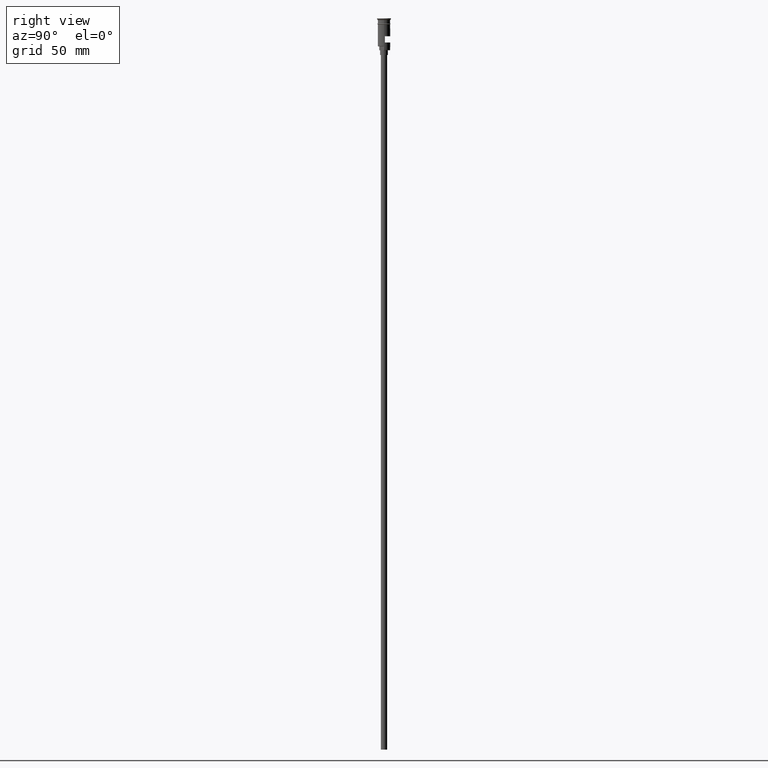
[diagram: clean part render]
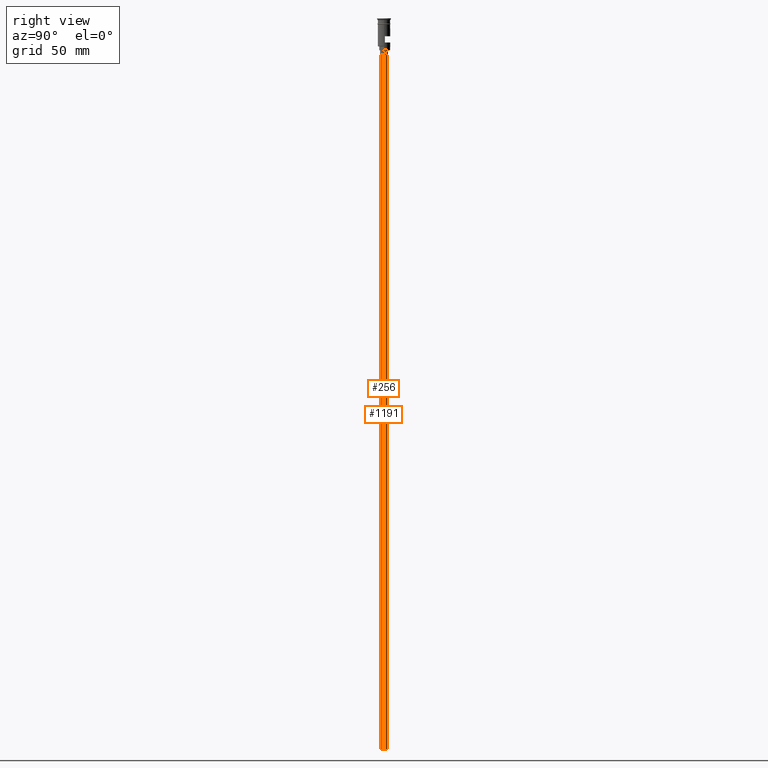
[diagram: same view with one multi-face feature highlighted, each face labeled with its STEP entity id]
A machine part, right view. The highlighted faces form ONE feature: a constant-radius fillet chain: 2 tangent blend faces with common blend radius 2 mm. The faces share edges in the B-rep.
Their STEP definitions:
[1] entity #1191 (Cylinder):
#6 = CARTESIAN_POINT ( 'NONE',  ( 0.000000000000000000, 0.000000000000000000, -470.5000000000000568 ) ) ;
#97 = DIRECTION ( 'NONE',  ( -0.000000000000000000, -0.000000000000000000, 1.000000000000000000 ) ) ;
#117 = VECTOR ( 'NONE', #1278, 1000.000000000000000 ) ;
#240 = LINE ( 'NONE', #480, #1143 ) ;
#241 = EDGE_LOOP ( 'NONE', ( #848, #998, #1153, #418 ) ) ;
#258 = DIRECTION ( 'NONE',  ( -0.000000000000000000, -0.000000000000000000, 1.000000000000000000 ) ) ;
#278 = DIRECTION ( 'NONE',  ( 1.000000000000000000, 0.000000000000000000, 0.000000000000000000 ) ) ;
#405 = CYLINDRICAL_SURFACE ( 'NONE', #1366, 2.000000000000000000 ) ;
#408 = LINE ( 'NONE', #1149, #117 ) ;
#418 = ORIENTED_EDGE ( 'NONE', *, *, #1133, .T. ) ;
#420 = CARTESIAN_POINT ( 'NONE',  ( 0.000000000000000000, 0.000000000000000000, -470.5000000000000568 ) ) ;
#461 = CARTESIAN_POINT ( 'NONE',  ( 2.000000000000000000, 0.000000000000000000, -470.5000000000000568 ) ) ;
#480 = CARTESIAN_POINT ( 'NONE',  ( -2.000000000000000000, 2.449293598294706414E-16, -470.5000000000000568 ) ) ;
#504 = DIRECTION ( 'NONE',  ( 0.000000000000000000, 0.000000000000000000, -1.000000000000000000 ) ) ;
#532 = VERTEX_POINT ( 'NONE', #1531 ) ;
#538 = DIRECTION ( 'NONE',  ( 0.000000000000000000, 0.000000000000000000, -1.000000000000000000 ) ) ;
#603 = CIRCLE ( 'NONE', #1602, 2.000000000000000000 ) ;
#635 = FACE_OUTER_BOUND ( 'NONE', #241, .T. ) ;
#636 = CARTESIAN_POINT ( 'NONE',  ( -2.000000000000000000, 2.449293598294706414E-16, -23.49999999999999645 ) ) ;
#696 = VERTEX_POINT ( 'NONE', #636 ) ;
#721 = VERTEX_POINT ( 'NONE', #461 ) ;
#811 = EDGE_CURVE ( 'NONE', #721, #532, #408, .T. ) ;
#848 = ORIENTED_EDGE ( 'NONE', *, *, #1465, .F. ) ;
#998 = ORIENTED_EDGE ( 'NONE', *, *, #1199, .F. ) ;
#1133 = EDGE_CURVE ( 'NONE', #532, #696, #603, .T. ) ;
#1142 = VERTEX_POINT ( 'NONE', #1480 ) ;
#1143 = VECTOR ( 'NONE', #97, 1000.000000000000000 ) ;
#1149 = CARTESIAN_POINT ( 'NONE',  ( 2.000000000000000000, 0.000000000000000000, -470.5000000000000568 ) ) ;
#1153 = ORIENTED_EDGE ( 'NONE', *, *, #811, .T. ) ;
#1191 = ADVANCED_FACE ( 'NONE', ( #635 ), #405, .T. ) ;
#1199 = EDGE_CURVE ( 'NONE', #721, #1142, #1319, .T. ) ;
#1235 = CARTESIAN_POINT ( 'NONE',  ( 0.000000000000000000, 0.000000000000000000, -23.49999999999999645 ) ) ;
#1270 = DIRECTION ( 'NONE',  ( -1.000000000000000000, 0.000000000000000000, 0.000000000000000000 ) ) ;
#1278 = DIRECTION ( 'NONE',  ( -0.000000000000000000, -0.000000000000000000, 1.000000000000000000 ) ) ;
#1288 = AXIS2_PLACEMENT_3D ( 'NONE', #6, #538, #1270 ) ;
#1319 = CIRCLE ( 'NONE', #1288, 2.000000000000000000 ) ;
#1366 = AXIS2_PLACEMENT_3D ( 'NONE', #420, #258, #278 ) ;
#1464 = DIRECTION ( 'NONE',  ( -1.000000000000000000, 0.000000000000000000, 0.000000000000000000 ) ) ;
#1465 = EDGE_CURVE ( 'NONE', #1142, #696, #240, .T. ) ;
#1480 = CARTESIAN_POINT ( 'NONE',  ( -2.000000000000000000, 2.449293598294706414E-16, -470.5000000000000568 ) ) ;
#1531 = CARTESIAN_POINT ( 'NONE',  ( 2.000000000000000000, 0.000000000000000000, -23.49999999999999645 ) ) ;
#1602 = AXIS2_PLACEMENT_3D ( 'NONE', #1235, #504, #1464 ) ;
[2] entity #256 (Cylinder):
#97 = DIRECTION ( 'NONE',  ( -0.000000000000000000, -0.000000000000000000, 1.000000000000000000 ) ) ;
#117 = VECTOR ( 'NONE', #1278, 1000.000000000000000 ) ;
#151 = ORIENTED_EDGE ( 'NONE', *, *, #1389, .F. ) ;
#240 = LINE ( 'NONE', #480, #1143 ) ;
#254 = ORIENTED_EDGE ( 'NONE', *, *, #1465, .T. ) ;
#256 = ADVANCED_FACE ( 'NONE', ( #852 ), #614, .T. ) ;
#315 = ORIENTED_EDGE ( 'NONE', *, *, #811, .F. ) ;
#408 = LINE ( 'NONE', #1149, #117 ) ;
#434 = DIRECTION ( 'NONE',  ( -1.000000000000000000, 0.000000000000000000, 0.000000000000000000 ) ) ;
#461 = CARTESIAN_POINT ( 'NONE',  ( 2.000000000000000000, 0.000000000000000000, -470.5000000000000568 ) ) ;
#480 = CARTESIAN_POINT ( 'NONE',  ( -2.000000000000000000, 2.449293598294706414E-16, -470.5000000000000568 ) ) ;
#529 = EDGE_LOOP ( 'NONE', ( #151, #254, #695, #315 ) ) ;
#532 = VERTEX_POINT ( 'NONE', #1531 ) ;
#614 = CYLINDRICAL_SURFACE ( 'NONE', #1210, 2.000000000000000000 ) ;
#636 = CARTESIAN_POINT ( 'NONE',  ( -2.000000000000000000, 2.449293598294706414E-16, -23.49999999999999645 ) ) ;
#664 = DIRECTION ( 'NONE',  ( -1.000000000000000000, 0.000000000000000000, 0.000000000000000000 ) ) ;
#676 = CIRCLE ( 'NONE', #889, 2.000000000000000000 ) ;
#695 = ORIENTED_EDGE ( 'NONE', *, *, #1233, .T. ) ;
#696 = VERTEX_POINT ( 'NONE', #636 ) ;
#711 = DIRECTION ( 'NONE',  ( -0.000000000000000000, -0.000000000000000000, 1.000000000000000000 ) ) ;
#721 = VERTEX_POINT ( 'NONE', #461 ) ;
#789 = CARTESIAN_POINT ( 'NONE',  ( 0.000000000000000000, 0.000000000000000000, -23.49999999999999645 ) ) ;
#811 = EDGE_CURVE ( 'NONE', #721, #532, #408, .T. ) ;
#816 = CARTESIAN_POINT ( 'NONE',  ( 0.000000000000000000, 0.000000000000000000, -470.5000000000000568 ) ) ;
#852 = FACE_OUTER_BOUND ( 'NONE', #529, .T. ) ;
#889 = AXIS2_PLACEMENT_3D ( 'NONE', #816, #1558, #434 ) ;
#965 = CIRCLE ( 'NONE', #1343, 2.000000000000000000 ) ;
#1091 = CARTESIAN_POINT ( 'NONE',  ( 0.000000000000000000, 0.000000000000000000, -470.5000000000000568 ) ) ;
#1142 = VERTEX_POINT ( 'NONE', #1480 ) ;
#1143 = VECTOR ( 'NONE', #97, 1000.000000000000000 ) ;
#1149 = CARTESIAN_POINT ( 'NONE',  ( 2.000000000000000000, 0.000000000000000000, -470.5000000000000568 ) ) ;
#1159 = DIRECTION ( 'NONE',  ( 0.000000000000000000, 0.000000000000000000, -1.000000000000000000 ) ) ;
#1203 = DIRECTION ( 'NONE',  ( 1.000000000000000000, 0.000000000000000000, 0.000000000000000000 ) ) ;
#1210 = AXIS2_PLACEMENT_3D ( 'NONE', #1091, #711, #1203 ) ;
#1233 = EDGE_CURVE ( 'NONE', #696, #532, #965, .T. ) ;
#1278 = DIRECTION ( 'NONE',  ( -0.000000000000000000, -0.000000000000000000, 1.000000000000000000 ) ) ;
#1343 = AXIS2_PLACEMENT_3D ( 'NONE', #789, #1159, #664 ) ;
#1389 = EDGE_CURVE ( 'NONE', #1142, #721, #676, .T. ) ;
#1465 = EDGE_CURVE ( 'NONE', #1142, #696, #240, .T. ) ;
#1480 = CARTESIAN_POINT ( 'NONE',  ( -2.000000000000000000, 2.449293598294706414E-16, -470.5000000000000568 ) ) ;
#1531 = CARTESIAN_POINT ( 'NONE',  ( 2.000000000000000000, 0.000000000000000000, -23.49999999999999645 ) ) ;
#1558 = DIRECTION ( 'NONE',  ( 0.000000000000000000, 0.000000000000000000, -1.000000000000000000 ) ) ;